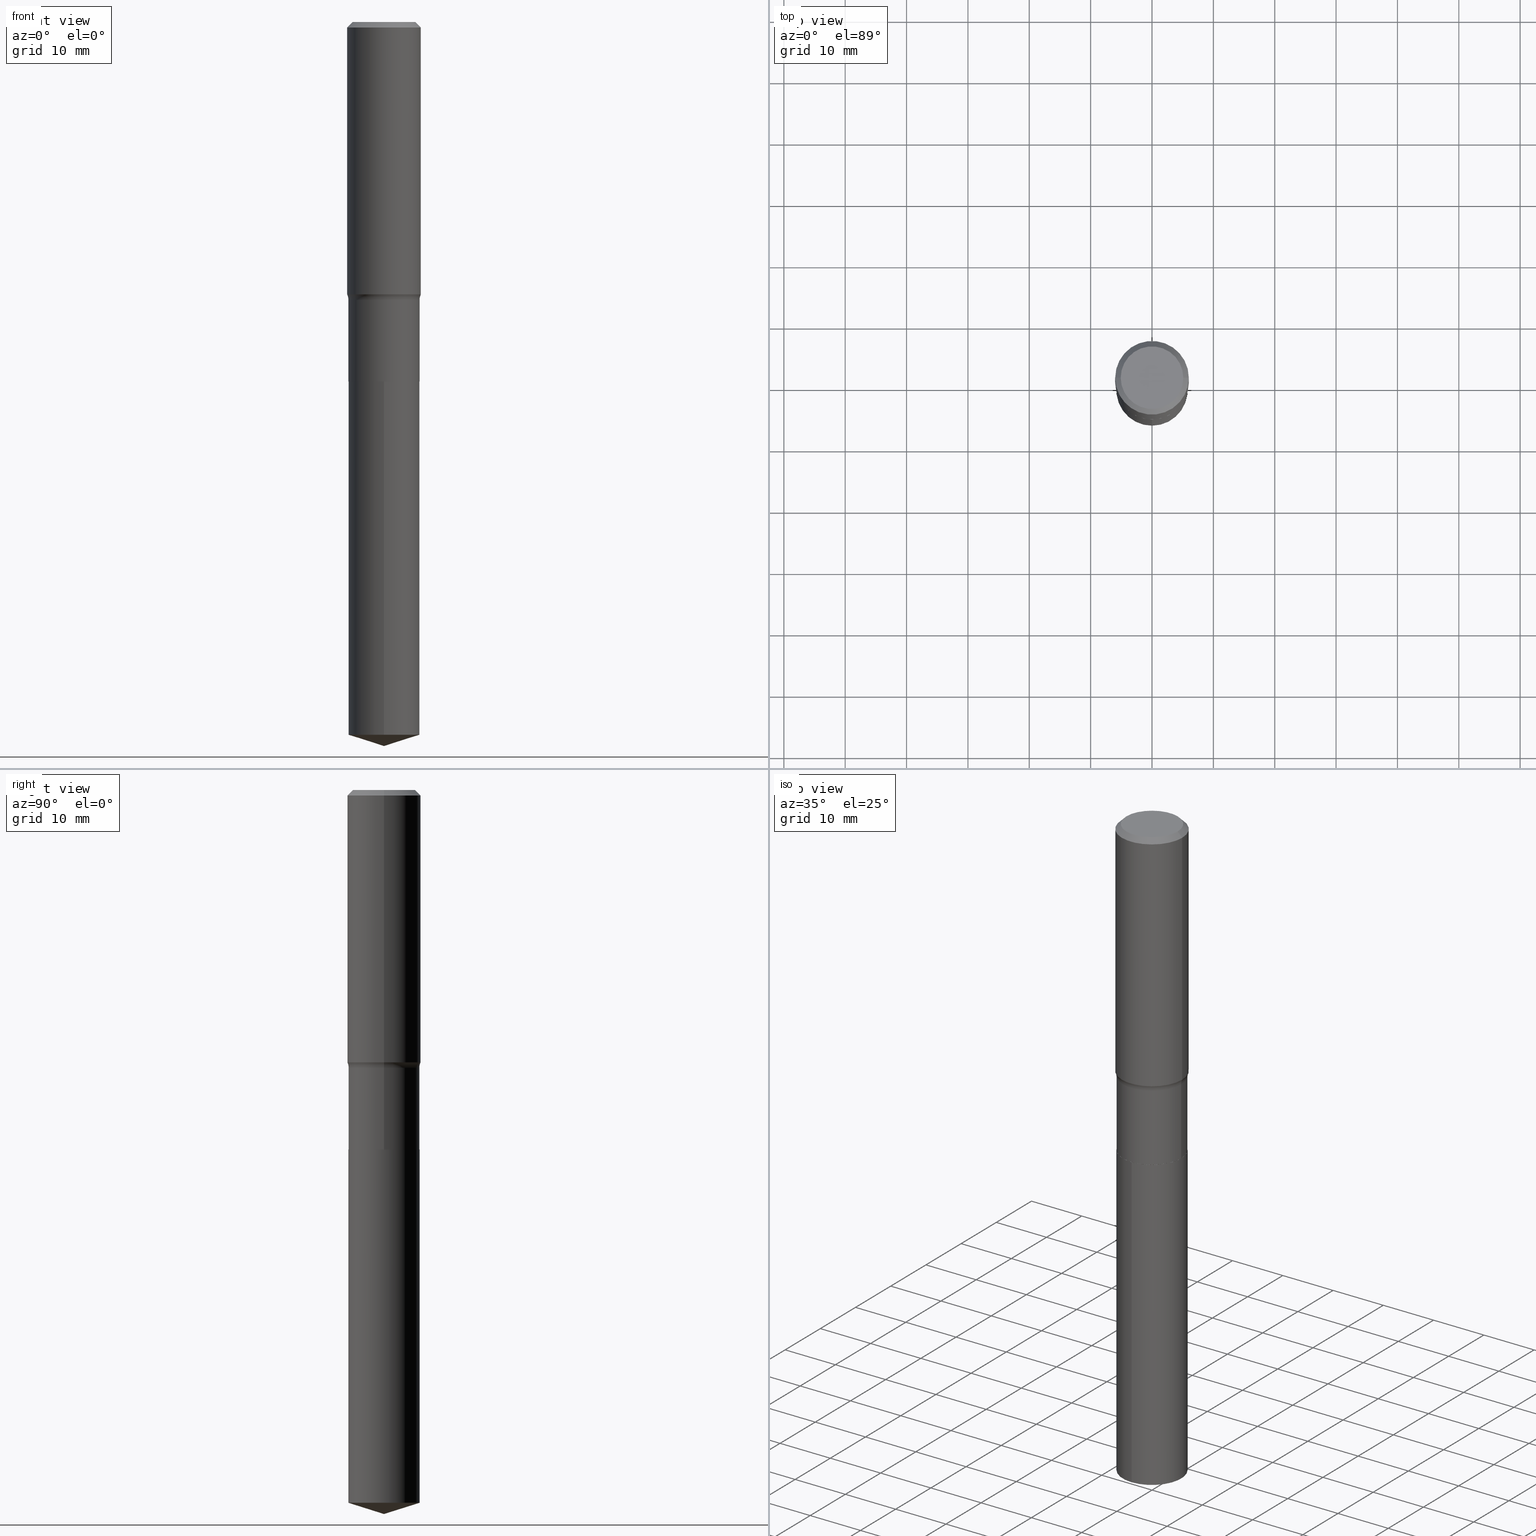
[diagram: canonical four-view strip — front | top / right | iso, engineering-drawing reading convention]
A machine part, canonical four-view strip (front | top / right | iso — engineering-drawing reading convention). The complete STEP part file that produces these views, byte-faithful:
ISO-10303-21;
HEADER;
FILE_DESCRIPTION (( 'STEP AP203' ),
    '1' );
FILE_NAME ('64191.STEP',
    '2024-04-19T15:32:59',
    ( '' ),
    ( '' ),
    'SwSTEP 2.0',
    'SolidWorks 2023',
    '' );
FILE_SCHEMA (( 'CONFIG_CONTROL_DESIGN' ));
ENDSEC;

DATA;
#1 = FACE_OUTER_BOUND ( 'NONE', #366, .T. ) ;
#2 = ORIENTED_EDGE ( 'NONE', *, *, #280, .F. ) ;
#3 = CARTESIAN_POINT ( 'NONE',  ( -0.2361999999999999933, 1.525672600634282748E-15, -0.03543000000000021826 ) ) ;
#4 = EDGE_CURVE ( 'NONE', #166, #167, #299, .T. ) ;
#5 = VECTOR ( 'NONE', #484, 39.37007874015748143 ) ;
#6 = PRODUCT_DEFINITION_FORMATION_WITH_SPECIFIED_SOURCE ( 'ANY', '', #438, .NOT_KNOWN. ) ;
#7 = DIRECTION ( 'NONE',  ( 2.445468806185136597E-29, -3.491481338843145583E-15, -1.000000000000000000 ) ) ;
#8 = DIRECTION ( 'NONE',  ( 1.000000000000000000, -6.982962677686269077E-15, 0.000000000000000000 ) ) ;
#9 = CC_DESIGN_PERSON_AND_ORGANIZATION_ASSIGNMENT ( #181, #377, ( #438 ) ) ;
#10 = PERSON_AND_ORGANIZATION ( #265, #436 ) ;
#11 = DIRECTION ( 'NONE',  ( -6.982962677686265922E-15, -1.000000000000000000, 3.500519750498709954E-15 ) ) ;
#12 = DIRECTION ( 'NONE',  ( -6.982962677686266711E-15, -1.000000000000000000, 3.491481338843145583E-15 ) ) ;
#13 = ADVANCED_FACE ( 'NONE', ( #79 ), #58, .T. ) ;
#14 = PERSON_AND_ORGANIZATION_ROLE ( 'classification_officer' ) ;
#15 = DIRECTION ( 'NONE',  ( -2.445468806185136877E-29, 3.491481338843145188E-15, 1.000000000000000000 ) ) ;
#16 = DIRECTION ( 'NONE',  ( 1.000000000000000000, -6.982962677686266711E-15, 4.876176775795936353E-29 ) ) ;
#17 = CARTESIAN_POINT ( 'NONE',  ( 8.664295980313993487E-31, -1.237031838352134079E-16, -0.03543000000000021826 ) ) ;
#18 = EDGE_CURVE ( 'NONE', #27, #250, #417, .T. ) ;
#19 = PERSON_AND_ORGANIZATION ( #265, #436 ) ;
#20 = CARTESIAN_POINT ( 'NONE',  ( 5.640718348346634668E-29, -8.053450856175598963E-15, -2.306599999999999540 ) ) ;
#21 = AXIS2_PLACEMENT_3D ( 'NONE', #234, #306, #313 ) ;
#22 = APPROVAL_PERSON_ORGANIZATION ( #19, #288, #316 ) ;
#23 =( NAMED_UNIT ( * ) PLANE_ANGLE_UNIT ( ) SI_UNIT ( $, .RADIAN. ) );
#24 = CARTESIAN_POINT ( 'NONE',  ( 0.2283499999999999697, -1.594559527449658749E-15, 1.113474966753001794E-29 ) ) ;
#25 = ORIENTED_EDGE ( 'NONE', *, *, #266, .T. ) ;
#26 = CIRCLE ( 'NONE', #467, 0.2283499999999999974 ) ;
#27 = VERTEX_POINT ( 'NONE', #81 ) ;
#28 = VERTEX_POINT ( 'NONE', #367 ) ;
#29 = DIRECTION ( 'NONE',  ( -2.445500184891920904E-29, 3.491436402749065523E-15, 1.000000000000000000 ) ) ;
#30 = ORIENTED_EDGE ( 'NONE', *, *, #475, .T. ) ;
#31 = ORIENTED_EDGE ( 'NONE', *, *, #394, .T. ) ;
#32 = LINE ( 'NONE', #140, #5 ) ;
#33 = EDGE_LOOP ( 'NONE', ( #214, #326, #376, #454 ) ) ;
#34 = AXIS2_PLACEMENT_3D ( 'NONE', #223, #80, #42 ) ;
#35 = ORIENTED_EDGE ( 'NONE', *, *, #132, .T. ) ;
#36 = CIRCLE ( 'NONE', #21, 0.2283499999999999419 ) ;
#37 = PLANE ( 'NONE',  #355 ) ;
#38 = DIRECTION ( 'NONE',  ( -2.445468806185136597E-29, 3.491481338843145583E-15, 1.000000000000000000 ) ) ;
#39 = CARTESIAN_POINT ( 'NONE',  ( 5.641941082749727469E-29, -8.055196596845019678E-15, -2.307099999999999707 ) ) ;
#40 = DIRECTION ( 'NONE',  ( 7.105427357601001859E-15, 1.000000000000000000, -3.491481338843145583E-15 ) ) ;
#41 = EDGE_CURVE ( 'NONE', #205, #28, #32, .T. ) ;
#42 = DIRECTION ( 'NONE',  ( 1.000000000000000000, -6.982962677686266711E-15, 4.876140833081945105E-29 ) ) ;
#43 = AXIS2_PLACEMENT_3D ( 'NONE', #359, #96, #142 ) ;
#44 = TOROIDAL_SURFACE ( 'NONE', #380, 0.3063499999999999002, 0.07799999999999995826 ) ;
#45 = APPLICATION_PROTOCOL_DEFINITION ( 'international standard', 'config_control_design', 1994, #192 ) ;
#46 = DIRECTION ( 'NONE',  ( -2.445468806185136597E-29, 3.491481338843145583E-15, 1.000000000000000000 ) ) ;
#47 = EDGE_CURVE ( 'NONE', #284, #290, #492, .T. ) ;
#48 = COORDINATED_UNIVERSAL_TIME_OFFSET ( 5, 0, .BEHIND. ) ;
#49 = DIRECTION ( 'NONE',  ( -1.000000000000000000, 6.982962677686265922E-15, -4.876176775795935793E-29 ) ) ;
#50 = PRODUCT_RELATED_PRODUCT_CATEGORY ( 'detail', '', ( #438 ) ) ;
#51 = CARTESIAN_POINT ( 'NONE',  ( 0.000000000000000000, 0.000000000000000000, 0.000000000000000000 ) ) ;
#52 = AXIS2_PLACEMENT_3D ( 'NONE', #221, #38, #180 ) ;
#53 = EDGE_CURVE ( 'NONE', #250, #247, #332, .T. ) ;
#54 = DIRECTION ( 'NONE',  ( -2.445500184891920904E-29, 3.491436402749065523E-15, 1.000000000000000000 ) ) ;
#55 = PERSON_AND_ORGANIZATION ( #265, #436 ) ;
#56 = DIRECTION ( 'NONE',  ( -2.445500184891920904E-29, 3.491436402749065523E-15, 1.000000000000000000 ) ) ;
#57 = CARTESIAN_POINT ( 'NONE',  ( 5.641941082749727469E-29, -8.055196596845019678E-15, -2.307099999999999707 ) ) ;
#58 = CONICAL_SURFACE ( 'NONE', #207, 0.2361999999999999933, 0.7853981633974452814 ) ;
#59 = ADVANCED_FACE ( 'NONE', ( #170 ), #64, .T. ) ;
#60 = PRODUCT_DEFINITION_SHAPE ( 'NONE', 'NONE',  #462 ) ;
#61 = EDGE_LOOP ( 'NONE', ( #97, #31, #133, #77 ) ) ;
#62 = FACE_OUTER_BOUND ( 'NONE', #483, .T. ) ;
#63 = EDGE_LOOP ( 'NONE', ( #35, #447, #162, #108 ) ) ;
#64 = CONICAL_SURFACE ( 'NONE', #91, 0.2278499999999999970, 0.7853981633975507526 ) ;
#65 = CONICAL_SURFACE ( 'NONE', #95, 124.8659371009148629, 1.265363707695891238 ) ;
#66 = ORIENTED_EDGE ( 'NONE', *, *, #154, .T. ) ;
#67 = DIRECTION ( 'NONE',  ( 1.000000000000000000, -6.982962677686263555E-15, 0.000000000000000000 ) ) ;
#68 = EDGE_CURVE ( 'NONE', #167, #358, #378, .T. ) ;
#69 = DIRECTION ( 'NONE',  ( -2.445468806185136597E-29, 3.491481338843145583E-15, 1.000000000000000000 ) ) ;
#70 = DIRECTION ( 'NONE',  ( -6.982962677686265922E-15, -1.000000000000000000, 3.589027361941226102E-15 ) ) ;
#71 = VERTEX_POINT ( 'NONE', #369 ) ;
#72 = DIRECTION ( 'NONE',  ( 1.000000000000000000, -6.982962677686266711E-15, 0.000000000000000000 ) ) ;
#73 = DIRECTION ( 'NONE',  ( -2.445500184891920904E-29, 3.491436402749065523E-15, 1.000000000000000000 ) ) ;
#74 = AXIS2_PLACEMENT_3D ( 'NONE', #196, #298, #425 ) ;
#75 = EDGE_LOOP ( 'NONE', ( #412, #30, #66, #404 ) ) ;
#76 = EDGE_CURVE ( 'NONE', #211, #284, #178, .T. ) ;
#77 = ORIENTED_EDGE ( 'NONE', *, *, #53, .F. ) ;
#78 = CARTESIAN_POINT ( 'NONE',  ( 4.274184373566582098E-29, -6.102402509219707960E-15, -1.747797544076708398 ) ) ;
#79 = FACE_OUTER_BOUND ( 'NONE', #141, .T. ) ;
#80 = DIRECTION ( 'NONE',  ( -2.445468806185136597E-29, 3.491481338843145583E-15, 1.000000000000000000 ) ) ;
#81 = CARTESIAN_POINT ( 'NONE',  ( -0.2362000000000002431, -4.424100567354349199E-15, -1.747797544076708398 ) ) ;
#82 = EDGE_CURVE ( 'NONE', #358, #167, #126, .T. ) ;
#83 = CARTESIAN_POINT ( 'NONE',  ( -5.008488096090115757E-47, 7.150793614331959538E-33, 2.048068690724057264E-18 ) ) ;
#84 = FACE_OUTER_BOUND ( 'NONE', #204, .T. ) ;
#85 = CIRCLE ( 'NONE', #354, 0.2283499999999999974 ) ;
#86 = LOCAL_TIME ( 11, 32, 59.00000000000000000, #198 ) ;
#87 = DIRECTION ( 'NONE',  ( 1.000000000000000000, 0.000000000000000000, 0.000000000000000000 ) ) ;
#88 = FACE_OUTER_BOUND ( 'NONE', #33, .T. ) ;
#89 = DIRECTION ( 'NONE',  ( -2.445500184891920904E-29, 3.491436402749065523E-15, 1.000000000000000000 ) ) ;
#90 = PERSON_AND_ORGANIZATION_ROLE ( 'design_supplier' ) ;
#91 = AXIS2_PLACEMENT_3D ( 'NONE', #486, #103, #257 ) ;
#92 = EDGE_CURVE ( 'NONE', #27, #358, #444, .T. ) ;
#93 = APPROVAL_STATUS ( 'not_yet_approved' ) ;
#94 = CARTESIAN_POINT ( 'NONE',  ( 0.000000000000000000, 0.000000000000000000, 0.000000000000000000 ) ) ;
#95 = AXIS2_PLACEMENT_3D ( 'NONE', #269, #373, #11 ) ;
#96 = DIRECTION ( 'NONE',  ( -2.445468806185136597E-29, 3.491481338843145583E-15, 1.000000000000000000 ) ) ;
#97 = ORIENTED_EDGE ( 'NONE', *, *, #194, .F. ) ;
#98 = LINE ( 'NONE', #291, #435 ) ;
#99 = EDGE_LOOP ( 'NONE', ( #115, #215, #102 ) ) ;
#100 = CARTESIAN_POINT ( 'NONE',  ( 4.357580865741294420E-29, -6.221470597684601332E-15, -1.781899999999999817 ) ) ;
#101 = ADVANCED_FACE ( 'NONE', ( #62 ), #224, .F. ) ;
#102 = ORIENTED_EDGE ( 'NONE', *, *, #132, .F. ) ;
#103 = DIRECTION ( 'NONE',  ( -2.445468806185136597E-29, 3.491481338843145583E-15, 1.000000000000000000 ) ) ;
#104 = EDGE_CURVE ( 'NONE', #27, #443, #244, .T. ) ;
#105 = DIRECTION ( 'NONE',  ( -2.445468806185136877E-29, 3.491481338843145188E-15, 1.000000000000000000 ) ) ;
#106 = ORIENTED_EDGE ( 'NONE', *, *, #268, .T. ) ;
#107 = EDGE_CURVE ( 'NONE', #247, #250, #36, .T. ) ;
#108 = ORIENTED_EDGE ( 'NONE', *, *, #47, .F. ) ;
#109 = DIRECTION ( 'NONE',  ( -6.659769872151631300E-15, -0.9537169507482265995, 0.3007057995042742848 ) ) ;
#110 = DIRECTION ( 'NONE',  ( 0.000000000000000000, 0.000000000000000000, 1.000000000000000000 ) ) ;
#111 = DIRECTION ( 'NONE',  ( -6.982962677686265922E-15, -1.000000000000000000, 3.500519750498709954E-15 ) ) ;
#112 = VECTOR ( 'NONE', #117, 39.37007874015748854 ) ;
#113 = APPROVAL_ROLE ( '' ) ;
#114 = FACE_OUTER_BOUND ( 'NONE', #172, .T. ) ;
#115 = ORIENTED_EDGE ( 'NONE', *, *, #76, .F. ) ;
#116 = DIRECTION ( 'NONE',  ( 0.7071067811865453523, -7.319954787623248157E-15, -0.7071067811865496822 ) ) ;
#117 = DIRECTION ( 'NONE',  ( 6.776566513254256560E-15, 0.9537169507482287090, 0.3007057995042676235 ) ) ;
#118 = DIRECTION ( 'NONE',  ( 1.000000000000000000, -6.982962677686264344E-15, 4.883557194083111780E-29 ) ) ;
#119 = AXIS2_PLACEMENT_3D ( 'NONE', #428, #466, #121 ) ;
#120 = CALENDAR_DATE ( 2024, 19, 4 ) ;
#121 = DIRECTION ( 'NONE',  ( 1.000000000000000000, -6.982962677686266711E-15, 4.876176775795935793E-29 ) ) ;
#122 = DIRECTION ( 'NONE',  ( -2.445468806185136597E-29, 3.491481338843145583E-15, 1.000000000000000000 ) ) ;
#123 = APPROVAL_STATUS ( 'not_yet_approved' ) ;
#124 = CYLINDRICAL_SURFACE ( 'NONE', #264, 0.2283499999999999697 ) ;
#125 = CYLINDRICAL_SURFACE ( 'NONE', #239, 0.2362000000000001321 ) ;
#126 = CIRCLE ( 'NONE', #52, 0.2361999999999999933 ) ;
#127 = APPROVAL_DATE_TIME ( #391, #288 ) ;
#128 = AXIS2_PLACEMENT_3D ( 'NONE', #226, #12, #149 ) ;
#129 = CC_DESIGN_DATE_AND_TIME_ASSIGNMENT ( #469, #235, ( #370 ) ) ;
#130 = DIRECTION ( 'NONE',  ( -2.445468806185136597E-29, 3.491481338843145583E-15, 1.000000000000000000 ) ) ;
#131 = CARTESIAN_POINT ( 'NONE',  ( 1.622524337108299986E-15, 0.2283499999999839269, -4.573701521559485172 ) ) ;
#132 = EDGE_CURVE ( 'NONE', #284, #173, #186, .T. ) ;
#133 = ORIENTED_EDGE ( 'NONE', *, *, #201, .T. ) ;
#134 = ORIENTED_EDGE ( 'NONE', *, *, #104, .F. ) ;
#135 = CARTESIAN_POINT ( 'NONE',  ( -1.594559527449602149E-15, -0.2283500000000080743, -2.307099999999998818 ) ) ;
#136 = VERTEX_POINT ( 'NONE', #468 ) ;
#137 = CIRCLE ( 'NONE', #488, 0.2362000000000002431 ) ;
#138 = AXIS2_PLACEMENT_3D ( 'NONE', #431, #89, #371 ) ;
#139 = ORIENTED_EDGE ( 'NONE', *, *, #18, .T. ) ;
#140 = CARTESIAN_POINT ( 'NONE',  ( -0.2278499999999999970, -6.436224973415631426E-15, -2.307099999999999707 ) ) ;
#141 = EDGE_LOOP ( 'NONE', ( #212, #217, #395, #328 ) ) ;
#142 = DIRECTION ( 'NONE',  ( 1.000000000000000000, -6.982962677686270655E-15, 0.000000000000000000 ) ) ;
#143 = FACE_OUTER_BOUND ( 'NONE', #368, .T. ) ;
#144 = DIRECTION ( 'NONE',  ( -0.7071067811865453523, 2.468850131082234184E-15, -0.7071067811865496822 ) ) ;
#145 = VECTOR ( 'NONE', #105, 39.37007874015748143 ) ;
#146 = DIRECTION ( 'NONE',  ( 2.445500184891920624E-29, -3.491436402749065523E-15, -1.000000000000000000 ) ) ;
#147 = AXIS2_PLACEMENT_3D ( 'NONE', #388, #54, #276 ) ;
#148 = DIRECTION ( 'NONE',  ( -2.445500184891920904E-29, 3.491436402749065523E-15, 1.000000000000000000 ) ) ;
#149 = DIRECTION ( 'NONE',  ( 1.000000000000000000, -6.982962677686276966E-15, 0.000000000000000000 ) ) ;
#150 = DIRECTION ( 'NONE',  ( -2.445500184891920904E-29, 3.491436402749065523E-15, 1.000000000000000000 ) ) ;
#151 = CIRCLE ( 'NONE', #311, 0.2007700000000000040 ) ;
#152 = LOCAL_TIME ( 11, 32, 59.00000000000000000, #153 ) ;
#153 = COORDINATED_UNIVERSAL_TIME_OFFSET ( 5, 0, .BEHIND. ) ;
#154 = EDGE_CURVE ( 'NONE', #136, #71, #464, .T. ) ;
#155 = EDGE_LOOP ( 'NONE', ( #331, #338, #285, #222 ) ) ;
#156 = FACE_OUTER_BOUND ( 'NONE', #155, .T. ) ;
#157 = CALENDAR_DATE ( 2024, 19, 4 ) ;
#158 = LINE ( 'NONE', #315, #197 ) ;
#159 = ADVANCED_FACE ( 'NONE', ( #84 ), #384, .T. ) ;
#160 = VECTOR ( 'NONE', #109, 39.37007874015748143 ) ;
#161 = EDGE_CURVE ( 'NONE', #71, #28, #253, .T. ) ;
#162 = ORIENTED_EDGE ( 'NONE', *, *, #446, .F. ) ;
#163 = AXIS2_PLACEMENT_3D ( 'NONE', #270, #122, #386 ) ;
#164 = EDGE_CURVE ( 'NONE', #173, #413, #98, .T. ) ;
#165 = CYLINDRICAL_SURFACE ( 'NONE', #448, 0.2283499999999999974 ) ;
#166 = VERTEX_POINT ( 'NONE', #210 ) ;
#167 = VERTEX_POINT ( 'NONE', #363 ) ;
#168 = ADVANCED_FACE ( 'NONE', ( #490 ), #165, .T. ) ;
#169 = ORIENTED_EDGE ( 'NONE', *, *, #280, .T. ) ;
#170 = FACE_OUTER_BOUND ( 'NONE', #445, .T. ) ;
#171 = DESIGN_CONTEXT ( 'detailed design', #192, 'design' ) ;
#172 = EDGE_LOOP ( 'NONE', ( #134, #139, #323, #482 ) ) ;
#173 = VERTEX_POINT ( 'NONE', #131 ) ;
#174 = ORIENTED_EDGE ( 'NONE', *, *, #161, .F. ) ;
#175 = AXIS2_PLACEMENT_3D ( 'NONE', #346, #146, #422 ) ;
#176 = AXIS2_PLACEMENT_3D ( 'NONE', #17, #242, #195 ) ;
#177 = ORIENTED_EDGE ( 'NONE', *, *, #446, .T. ) ;
#178 = LINE ( 'NONE', #213, #160 ) ;
#179 = CYLINDRICAL_SURFACE ( 'NONE', #138, 0.2283499999999999974 ) ;
#180 = DIRECTION ( 'NONE',  ( 1.000000000000000000, -6.982962677686266711E-15, 0.000000000000000000 ) ) ;
#181 = PERSON_AND_ORGANIZATION ( #265, #436 ) ;
#182 = CARTESIAN_POINT ( 'NONE',  ( -1.594559527449546337E-15, -0.2283500000000158736, -4.573701521559483396 ) ) ;
#183 = PERSON_AND_ORGANIZATION ( #265, #436 ) ;
#184 = DIRECTION ( 'NONE',  ( -2.445468806185136597E-29, 3.491481338843145583E-15, 1.000000000000000000 ) ) ;
#185 = EDGE_CURVE ( 'NONE', #166, #236, #151, .T. ) ;
#186 = CIRCLE ( 'NONE', #74, 0.2283499999999999974 ) ;
#187 = DIRECTION ( 'NONE',  ( -2.445468806185136597E-29, 3.491481338843145583E-15, 1.000000000000000000 ) ) ;
#188 = CONICAL_SURFACE ( 'NONE', #480, 124.8659371009148629, 1.265363707695891238 ) ;
#189 = MANIFOLD_SOLID_BREP ( 'Body-Move/Copy2[2]', #427 ) ;
#190 = COORDINATED_UNIVERSAL_TIME_OFFSET ( 5, 0, .BEHIND. ) ;
#191 = FACE_OUTER_BOUND ( 'NONE', #416, .T. ) ;
#192 = APPLICATION_CONTEXT ( 'configuration controlled 3d designs of mechanical parts and assemblies' ) ;
#193 = DIRECTION ( 'NONE',  ( 1.000000000000000000, -6.982962677686265922E-15, 0.000000000000000000 ) ) ;
#194 = EDGE_CURVE ( 'NONE', #28, #250, #408, .T. ) ;
#195 = DIRECTION ( 'NONE',  ( -1.000000000000000000, 6.982962677686266711E-15, 0.000000000000000000 ) ) ;
#196 = CARTESIAN_POINT ( 'NONE',  ( 1.118491552279975631E-28, -1.596889165974422401E-14, -4.573701521559484284 ) ) ;
#197 = VECTOR ( 'NONE', #15, 39.37007874015748143 ) ;
#198 = COORDINATED_UNIVERSAL_TIME_OFFSET ( 5, 0, .BEHIND. ) ;
#199 = MANIFOLD_SOLID_BREP ( 'Body-Move/Copy2[1]', #283 ) ;
#200 =( CONVERSION_BASED_UNIT ( 'INCH', #357 ) LENGTH_UNIT ( ) NAMED_UNIT ( #202 ) );
#201 = EDGE_CURVE ( 'NONE', #71, #247, #258, .T. ) ;
#202 = DIMENSIONAL_EXPONENTS ( 1.000000000000000000, 0.000000000000000000, 0.000000000000000000, 0.000000000000000000, 0.000000000000000000, 0.000000000000000000, 0.000000000000000000 ) ;
#203 = APPROVAL ( #300, 'UNSPECIFIED' ) ;
#204 = EDGE_LOOP ( 'NONE', ( #25, #220, #206, #365 ) ) ;
#205 = VERTEX_POINT ( 'NONE', #251 ) ;
#206 = ORIENTED_EDGE ( 'NONE', *, *, #68, .F. ) ;
#207 = AXIS2_PLACEMENT_3D ( 'NONE', #452, #7, #225 ) ;
#208 = APPROVAL_PERSON_ORGANIZATION ( #183, #203, #113 ) ;
#209 = ORIENTED_EDGE ( 'NONE', *, *, #107, .F. ) ;
#210 = CARTESIAN_POINT ( 'NONE',  ( 0.2007700000000000040, -1.560767496960719672E-15, 4.096137381458473721E-18 ) ) ;
#211 = VERTEX_POINT ( 'NONE', #411 ) ;
#212 = ORIENTED_EDGE ( 'NONE', *, *, #185, .F. ) ;
#213 = CARTESIAN_POINT ( 'NONE',  ( 1.136091542132355139E-28, -1.622037344037663839E-14, -4.645699999999999719 ) ) ;
#214 = ORIENTED_EDGE ( 'NONE', *, *, #164, .F. ) ;
#215 = ORIENTED_EDGE ( 'NONE', *, *, #297, .T. ) ;
#216 = DIRECTION ( 'NONE',  ( -2.445468806185136597E-29, 3.491481338843145583E-15, 1.000000000000000000 ) ) ;
#217 = ORIENTED_EDGE ( 'NONE', *, *, #4, .T. ) ;
#218 = VECTOR ( 'NONE', #456, 39.37007874015748143 ) ;
#219 = CONICAL_SURFACE ( 'NONE', #176, 0.2361999999999999933, 0.7853981633974452814 ) ;
#220 = ORIENTED_EDGE ( 'NONE', *, *, #92, .T. ) ;
#221 = CARTESIAN_POINT ( 'NONE',  ( 8.664295980313993487E-31, -1.237031838352134079E-16, -0.03543000000000021826 ) ) ;
#222 = ORIENTED_EDGE ( 'NONE', *, *, #82, .F. ) ;
#223 = CARTESIAN_POINT ( 'NONE',  ( -1.001697619218023151E-46, 1.430158722866391908E-32, 4.096137381448114529E-18 ) ) ;
#224 = PLANE ( 'NONE',  #175 ) ;
#225 = DIRECTION ( 'NONE',  ( -1.000000000000000000, 6.982962677686266711E-15, 0.000000000000000000 ) ) ;
#226 = CARTESIAN_POINT ( 'NONE',  ( 0.3063499999999999002, -8.360701213993788325E-15, -1.781899999999999817 ) ) ;
#227 = CARTESIAN_POINT ( 'NONE',  ( 4.274184373566582098E-29, -6.102402509219707960E-15, -1.747797544076708398 ) ) ;
#228 = ORIENTED_EDGE ( 'NONE', *, *, #82, .T. ) ;
#229 = FACE_OUTER_BOUND ( 'NONE', #99, .T. ) ;
#230 = VECTOR ( 'NONE', #144, 39.37007874015748143 ) ;
#231 = AXIS2_PLACEMENT_3D ( 'NONE', #57, #130, #281 ) ;
#232 = CALENDAR_DATE ( 2024, 19, 4 ) ;
#233 = LINE ( 'NONE', #3, #230 ) ;
#234 = CARTESIAN_POINT ( 'NONE',  ( 4.357580865741294420E-29, -6.221470597684601332E-15, -1.781899999999999817 ) ) ;
#235 = DATE_TIME_ROLE ( 'classification_date' ) ;
#236 = VERTEX_POINT ( 'NONE', #442 ) ;
#237 = CARTESIAN_POINT ( 'NONE',  ( 0.2278499999999999970, -9.646264642955835617E-15, -2.307099999999999707 ) ) ;
#238 = APPROVAL_DATE_TIME ( #432, #453 ) ;
#239 = AXIS2_PLACEMENT_3D ( 'NONE', #51, #240, #16 ) ;
#240 = DIRECTION ( 'NONE',  ( -2.445468806185136597E-29, 3.491481338843145583E-15, 1.000000000000000000 ) ) ;
#241 = PERSON_AND_ORGANIZATION ( #265, #436 ) ;
#242 = DIRECTION ( 'NONE',  ( 2.445468806185136597E-29, -3.491481338843145583E-15, -1.000000000000000000 ) ) ;
#243 = CIRCLE ( 'NONE', #34, 0.2007700000000000040 ) ;
#244 = CIRCLE ( 'NONE', #389, 0.2362000000000002431 ) ;
#245 = CIRCLE ( 'NONE', #128, 0.07799999999999993050 ) ;
#246 = EDGE_CURVE ( 'NONE', #236, #358, #233, .T. ) ;
#247 = VERTEX_POINT ( 'NONE', #296 ) ;
#248 = CARTESIAN_POINT ( 'NONE',  ( -0.2362000000000001321, 1.678301941865357577E-15, -1.161852468318209457E-29 ) ) ;
#249 = CC_DESIGN_PERSON_AND_ORGANIZATION_ASSIGNMENT ( #437, #385, ( #6 ) ) ;
#250 = VERTEX_POINT ( 'NONE', #455 ) ;
#251 = CARTESIAN_POINT ( 'NONE',  ( -0.2278499999999999970, -6.433575746241520225E-15, -2.307099999999999707 ) ) ;
#252 = ORIENTED_EDGE ( 'NONE', *, *, #161, .T. ) ;
#253 = CIRCLE ( 'NONE', #43, 0.2283499999999999974 ) ;
#254 = EDGE_CURVE ( 'NONE', #173, #284, #85, .T. ) ;
#255 = CIRCLE ( 'NONE', #489, 0.2278499999999999970 ) ;
#256 = ORIENTED_EDGE ( 'NONE', *, *, #254, .F. ) ;
#257 = DIRECTION ( 'NONE',  ( 1.000000000000000000, -6.982962677686269077E-15, 0.000000000000000000 ) ) ;
#258 = LINE ( 'NONE', #24, #319 ) ;
#259 = ORIENTED_EDGE ( 'NONE', *, *, #76, .T. ) ;
#260 = DIRECTION ( 'NONE',  ( -2.445500184891920904E-29, 3.491436402749065523E-15, 1.000000000000000000 ) ) ;
#261 = ORIENTED_EDGE ( 'NONE', *, *, #423, .T. ) ;
#262 = MECHANICAL_CONTEXT ( 'NONE', #293, 'mechanical' ) ;
#263 = DIRECTION ( 'NONE',  ( -2.445468806185136597E-29, 3.491481338843145583E-15, 1.000000000000000000 ) ) ;
#264 = AXIS2_PLACEMENT_3D ( 'NONE', #94, #275, #477 ) ;
#265 = PERSON ( 'UNSPECIFIED', 'UNSPECIFIED', 'UNSPECIFIED', ('UNSPECIFIED'), ('UNSPECIFIED'), ('UNSPECIFIED') ) ;
#266 = EDGE_CURVE ( 'NONE', #443, #27, #137, .T. ) ;
#267 = CARTESIAN_POINT ( 'NONE',  ( 5.641941082749727469E-29, -8.055196596845019678E-15, -2.307099999999999707 ) ) ;
#268 = EDGE_CURVE ( 'NONE', #236, #166, #243, .T. ) ;
#269 = CARTESIAN_POINT ( 'NONE',  ( -8.491854702312662394E-28, 1.212378563241689000E-13, 34.72437874015748349 ) ) ;
#270 = CARTESIAN_POINT ( 'NONE',  ( 0.000000000000000000, 0.000000000000000000, 0.000000000000000000 ) ) ;
#271 = PERSON_AND_ORGANIZATION ( #265, #436 ) ;
#272 = CYLINDRICAL_SURFACE ( 'NONE', #119, 0.2283499999999999697 ) ;
#273 = ADVANCED_FACE ( 'NONE', ( #143 ), #65, .T. ) ;
#274 = CALENDAR_DATE ( 2024, 19, 4 ) ;
#275 = DIRECTION ( 'NONE',  ( -2.445468806185136597E-29, 3.491481338843145583E-15, 1.000000000000000000 ) ) ;
#276 = DIRECTION ( 'NONE',  ( -6.982962677686265922E-15, -1.000000000000000000, 3.589027361941226102E-15 ) ) ;
#277 = AXIS2_PLACEMENT_3D ( 'NONE', #100, #216, #67 ) ;
#278 = ADVANCED_FACE ( 'NONE', ( #229 ), #188, .T. ) ;
#279 = DIRECTION ( 'NONE',  ( -2.445468806185136597E-29, 3.491481338843145583E-15, 1.000000000000000000 ) ) ;
#280 = EDGE_CURVE ( 'NONE', #136, #205, #255, .T. ) ;
#281 = DIRECTION ( 'NONE',  ( 1.000000000000000000, -6.982962677686269077E-15, 0.000000000000000000 ) ) ;
#282 = DIRECTION ( 'NONE',  ( 1.000000000000000000, -6.982962677686264344E-15, 4.883557194083111780E-29 ) ) ;
#283 = CLOSED_SHELL ( 'NONE', ( #168, #278, #273, #353, #101 ) ) ;
#284 = VERTEX_POINT ( 'NONE', #182 ) ;
#285 = ORIENTED_EDGE ( 'NONE', *, *, #434, .T. ) ;
#286 = ADVANCED_FACE ( 'NONE', ( #191 ), #37, .F. ) ;
#287 = ORIENTED_EDGE ( 'NONE', *, *, #246, .T. ) ;
#288 = APPROVAL ( #93, 'UNSPECIFIED' ) ;
#289 = CC_DESIGN_APPROVAL ( #453, ( #370 ) ) ;
#290 = VERTEX_POINT ( 'NONE', #342 ) ;
#291 = CARTESIAN_POINT ( 'NONE',  ( 1.622524337108245160E-15, 0.2283499999999919483, -2.307100000000000151 ) ) ;
#292 = ORIENTED_EDGE ( 'NONE', *, *, #194, .T. ) ;
#293 = APPLICATION_CONTEXT ( 'configuration controlled 3d designs of mechanical parts and assemblies' ) ;
#294 = ORIENTED_EDGE ( 'NONE', *, *, #297, .F. ) ;
#295 = CARTESIAN_POINT ( 'NONE',  ( 0.000000000000000000, 0.000000000000000000, 0.000000000000000000 ) ) ;
#296 = CARTESIAN_POINT ( 'NONE',  ( 0.2283499999999999419, -7.816030125134258701E-15, -1.781899999999999817 ) ) ;
#297 = EDGE_CURVE ( 'NONE', #211, #173, #304, .T. ) ;
#298 = DIRECTION ( 'NONE',  ( -2.445500184891920904E-29, 3.491436402749065523E-15, 1.000000000000000000 ) ) ;
#299 = LINE ( 'NONE', #333, #479 ) ;
#300 = APPROVAL_STATUS ( 'not_yet_approved' ) ;
#301 = CARTESIAN_POINT ( 'NONE',  ( -8.491854702312662394E-28, 1.212378563241689000E-13, 34.72437874015748349 ) ) ;
#302 =( GEOMETRIC_REPRESENTATION_CONTEXT ( 3 ) GLOBAL_UNCERTAINTY_ASSIGNED_CONTEXT ( ( #364 ) ) GLOBAL_UNIT_ASSIGNED_CONTEXT ( ( #200, #23, #352 ) ) REPRESENTATION_CONTEXT ( 'NONE', 'WORKASPACE' ) );
#303 = ADVANCED_FACE ( 'NONE', ( #114 ), #399, .F. ) ;
#304 = LINE ( 'NONE', #459, #112 ) ;
#305 = EDGE_LOOP ( 'NONE', ( #2, #407 ) ) ;
#306 = DIRECTION ( 'NONE',  ( -2.445468806185136597E-29, 3.491481338843145583E-15, 1.000000000000000000 ) ) ;
#307 = DIRECTION ( 'NONE',  ( 1.000000000000000000, -6.982962677686265922E-15, 4.876176775795935793E-29 ) ) ;
#308 = ADVANCED_FACE ( 'NONE', ( #345 ), #343, .T. ) ;
#309 = COORDINATED_UNIVERSAL_TIME_OFFSET ( 5, 0, .BEHIND. ) ;
#310 = DIRECTION ( 'NONE',  ( -2.445468806185136597E-29, 3.491481338843145583E-15, 1.000000000000000000 ) ) ;
#311 = AXIS2_PLACEMENT_3D ( 'NONE', #485, #403, #322 ) ;
#312 = CC_DESIGN_APPROVAL ( #288, ( #6 ) ) ;
#313 = DIRECTION ( 'NONE',  ( 1.000000000000000000, -6.982962677686263555E-15, 0.000000000000000000 ) ) ;
#314 = LOCAL_TIME ( 11, 32, 59.00000000000000000, #48 ) ;
#315 = CARTESIAN_POINT ( 'NONE',  ( 0.2362000000000001321, -1.649375784469497117E-15, 1.151752954443000789E-29 ) ) ;
#316 = APPROVAL_ROLE ( '' ) ;
#317 = CARTESIAN_POINT ( 'NONE',  ( 1.622524337108300972E-15, 0.2283499999999919483, -2.307100000000000151 ) ) ;
#318 = CC_DESIGN_DATE_AND_TIME_ASSIGNMENT ( #356, #439, ( #462 ) ) ;
#319 = VECTOR ( 'NONE', #478, 39.37007874015748143 ) ;
#320 = AXIS2_PLACEMENT_3D ( 'NONE', #295, #110, #87 ) ;
#321 = FACE_OUTER_BOUND ( 'NONE', #426, .T. ) ;
#322 = DIRECTION ( 'NONE',  ( 1.000000000000000000, -6.982962677686266711E-15, 4.876140833081945105E-29 ) ) ;
#323 = ORIENTED_EDGE ( 'NONE', *, *, #53, .T. ) ;
#324 = VECTOR ( 'NONE', #29, 39.37007874015748143 ) ;
#325 = APPROVAL_PERSON_ORGANIZATION ( #271, #453, #430 ) ;
#326 = ORIENTED_EDGE ( 'NONE', *, *, #254, .T. ) ;
#327 = ORIENTED_EDGE ( 'NONE', *, *, #201, .F. ) ;
#328 = ORIENTED_EDGE ( 'NONE', *, *, #246, .F. ) ;
#329 = EDGE_CURVE ( 'NONE', #443, #247, #245, .T. ) ;
#330 = ORIENTED_EDGE ( 'NONE', *, *, #4, .F. ) ;
#331 = ORIENTED_EDGE ( 'NONE', *, *, #92, .F. ) ;
#332 = CIRCLE ( 'NONE', #277, 0.2283499999999999419 ) ;
#333 = CARTESIAN_POINT ( 'NONE',  ( 0.2361999999999999933, -1.744152810908849053E-15, -0.03543000000000021826 ) ) ;
#334 = CC_DESIGN_APPROVAL ( #203, ( #462 ) ) ;
#335 = ORIENTED_EDGE ( 'NONE', *, *, #185, .T. ) ;
#336 = ADVANCED_FACE ( 'NONE', ( #375 ), #461, .F. ) ;
#337 = CARTESIAN_POINT ( 'NONE',  ( -0.2361999999999999933, -1.434750904662102404E-15, -0.03543000000000021826 ) ) ;
#338 = ORIENTED_EDGE ( 'NONE', *, *, #104, .T. ) ;
#339 = ADVANCED_FACE ( 'NONE', ( #463 ), #272, .T. ) ;
#340 = DIRECTION ( 'NONE',  ( 2.438088387897960049E-29, -3.491481338843145188E-15, -1.000000000000000000 ) ) ;
#341 = APPROVAL_DATE_TIME ( #420, #203 ) ;
#342 = CARTESIAN_POINT ( 'NONE',  ( -1.594559527449602149E-15, -0.2283500000000080743, -2.307099999999998818 ) ) ;
#343 = CONICAL_SURFACE ( 'NONE', #362, 0.2278499999999999970, 0.7853981633975507526 ) ;
#344 = DIRECTION ( 'NONE',  ( 1.000000000000000000, -6.982962677686265922E-15, 0.000000000000000000 ) ) ;
#345 = FACE_OUTER_BOUND ( 'NONE', #75, .T. ) ;
#346 = CARTESIAN_POINT ( 'NONE',  ( 5.641941082749727469E-29, -8.055196596845019678E-15, -2.307099999999999707 ) ) ;
#347 = CARTESIAN_POINT ( 'NONE',  ( 5.641941082749727469E-29, -8.055196596845019678E-15, -2.307099999999999707 ) ) ;
#348 = CALENDAR_DATE ( 2024, 19, 4 ) ;
#349 = FACE_OUTER_BOUND ( 'NONE', #61, .T. ) ;
#350 = CIRCLE ( 'NONE', #231, 0.2278499999999999970 ) ;
#351 = SHAPE_DEFINITION_REPRESENTATION ( #60, #473 ) ;
#352 =( NAMED_UNIT ( * ) SI_UNIT ( $, .STERADIAN. ) SOLID_ANGLE_UNIT ( ) );
#353 = ADVANCED_FACE ( 'NONE', ( #88 ), #179, .T. ) ;
#354 = AXIS2_PLACEMENT_3D ( 'NONE', #379, #150, #419 ) ;
#355 = AXIS2_PLACEMENT_3D ( 'NONE', #83, #340, #49 ) ;
#356 = DATE_AND_TIME ( #348, #314 ) ;
#357 = LENGTH_MEASURE_WITH_UNIT ( LENGTH_MEASURE( 0.02539999999999999897 ), #433 );
#358 = VERTEX_POINT ( 'NONE', #337 ) ;
#359 = CARTESIAN_POINT ( 'NONE',  ( 5.640718348346634668E-29, -8.053450856175598963E-15, -2.306599999999999540 ) ) ;
#360 = ORIENTED_EDGE ( 'NONE', *, *, #18, .F. ) ;
#361 = VECTOR ( 'NONE', #401, 39.37007874015748143 ) ;
#362 = AXIS2_PLACEMENT_3D ( 'NONE', #347, #46, #8 ) ;
#363 = CARTESIAN_POINT ( 'NONE',  ( 0.2361999999999999933, -1.773078968304709514E-15, -0.03543000000000021826 ) ) ;
#364 = UNCERTAINTY_MEASURE_WITH_UNIT (LENGTH_MEASURE( 1.000000000000000082E-05 ), #200, 'distance_accuracy_value', 'NONE');
#365 = ORIENTED_EDGE ( 'NONE', *, *, #434, .F. ) ;
#366 = EDGE_LOOP ( 'NONE', ( #360, #491, #409, #402 ) ) ;
#367 = CARTESIAN_POINT ( 'NONE',  ( -0.2283499999999999974, -5.514936389821909419E-15, -2.306599999999999540 ) ) ;
#368 = EDGE_LOOP ( 'NONE', ( #294, #259, #256 ) ) ;
#369 = CARTESIAN_POINT ( 'NONE',  ( 0.2283499999999999974, -9.648010383625257910E-15, -2.306599999999999540 ) ) ;
#370 = SECURITY_CLASSIFICATION ( '', '', #465 ) ;
#371 = DIRECTION ( 'NONE',  ( -6.982962677686265922E-15, -1.000000000000000000, 3.589027361941226102E-15 ) ) ;
#372 = CC_DESIGN_PERSON_AND_ORGANIZATION_ASSIGNMENT ( #55, #14, ( #370 ) ) ;
#373 = DIRECTION ( 'NONE',  ( -2.445500184891920904E-29, 3.491436402749065523E-15, 1.000000000000000000 ) ) ;
#374 = CARTESIAN_POINT ( 'NONE',  ( -0.3063499999999999002, -4.044722926683535122E-15, -1.781899999999999817 ) ) ;
#375 = FACE_OUTER_BOUND ( 'NONE', #305, .T. ) ;
#376 = ORIENTED_EDGE ( 'NONE', *, *, #47, .T. ) ;
#377 = PERSON_AND_ORGANIZATION_ROLE ( 'design_owner' ) ;
#378 = CIRCLE ( 'NONE', #398, 0.2361999999999999933 ) ;
#379 = CARTESIAN_POINT ( 'NONE',  ( 1.118491552279975631E-28, -1.596889165974422401E-14, -4.573701521559484284 ) ) ;
#380 = AXIS2_PLACEMENT_3D ( 'NONE', #393, #279, #282 ) ;
#381 = ADVANCED_FACE ( 'NONE', ( #1 ), #44, .F. ) ;
#382 = PERSON_AND_ORGANIZATION_ROLE ( 'creator' ) ;
#383 = DIRECTION ( 'NONE',  ( 1.000000000000000000, -6.982962677686269077E-15, 0.000000000000000000 ) ) ;
#384 = CYLINDRICAL_SURFACE ( 'NONE', #163, 0.2362000000000001321 ) ;
#385 = PERSON_AND_ORGANIZATION_ROLE ( 'creator' ) ;
#386 = DIRECTION ( 'NONE',  ( 1.000000000000000000, -6.982962677686266711E-15, 4.876176775795936353E-29 ) ) ;
#387 = ADVANCED_FACE ( 'NONE', ( #321 ), #219, .T. ) ;
#388 = CARTESIAN_POINT ( 'NONE',  ( 5.641941082749727469E-29, -8.055196596845019678E-15, -2.307099999999999707 ) ) ;
#389 = AXIS2_PLACEMENT_3D ( 'NONE', #227, #187, #344 ) ;
#390 = CIRCLE ( 'NONE', #458, 0.2283499999999999974 ) ;
#391 = DATE_AND_TIME ( #157, #429 ) ;
#392 = DIRECTION ( 'NONE',  ( -6.982962677686265922E-15, -1.000000000000000000, 3.589027361941226102E-15 ) ) ;
#393 = CARTESIAN_POINT ( 'NONE',  ( 4.357580865741294420E-29, -6.221470597684601332E-15, -1.781899999999999817 ) ) ;
#394 = EDGE_CURVE ( 'NONE', #28, #71, #390, .T. ) ;
#395 = ORIENTED_EDGE ( 'NONE', *, *, #68, .T. ) ;
#396 = DIRECTION ( 'NONE',  ( -2.445468806185136597E-29, 3.491481338843145583E-15, 1.000000000000000000 ) ) ;
#397 = ADVANCED_FACE ( 'NONE', ( #156 ), #125, .T. ) ;
#398 = AXIS2_PLACEMENT_3D ( 'NONE', #410, #69, #72 ) ;
#399 = TOROIDAL_SURFACE ( 'NONE', #449, 0.3063499999999999002, 0.07799999999999995826 ) ;
#400 = EDGE_LOOP ( 'NONE', ( #252, #292, #209, #327 ) ) ;
#401 = DIRECTION ( 'NONE',  ( -2.445468806185136877E-29, 3.491481338843145188E-15, 1.000000000000000000 ) ) ;
#402 = ORIENTED_EDGE ( 'NONE', *, *, #107, .T. ) ;
#403 = DIRECTION ( 'NONE',  ( -2.445468806185136597E-29, 3.491481338843145583E-15, 1.000000000000000000 ) ) ;
#404 = ORIENTED_EDGE ( 'NONE', *, *, #394, .F. ) ;
#405 = CIRCLE ( 'NONE', #147, 0.2283499999999999974 ) ;
#406 = CC_DESIGN_PERSON_AND_ORGANIZATION_ASSIGNMENT ( #10, #382, ( #462 ) ) ;
#407 = ORIENTED_EDGE ( 'NONE', *, *, #475, .F. ) ;
#408 = LINE ( 'NONE', #450, #145 ) ;
#409 = ORIENTED_EDGE ( 'NONE', *, *, #329, .T. ) ;
#410 = CARTESIAN_POINT ( 'NONE',  ( 8.664295980313993487E-31, -1.237031838352134079E-16, -0.03543000000000021826 ) ) ;
#411 = CARTESIAN_POINT ( 'NONE',  ( 1.136106020895239541E-28, -1.622016609625133077E-14, -4.645699999999999719 ) ) ;
#412 = ORIENTED_EDGE ( 'NONE', *, *, #41, .F. ) ;
#413 = VERTEX_POINT ( 'NONE', #317 ) ;
#414 = CARTESIAN_POINT ( 'NONE',  ( 5.641941082749727469E-29, -8.055196596845019678E-15, -2.307099999999999707 ) ) ;
#415 = CC_DESIGN_PERSON_AND_ORGANIZATION_ASSIGNMENT ( #241, #90, ( #6 ) ) ;
#416 = EDGE_LOOP ( 'NONE', ( #106, #335 ) ) ;
#417 = CIRCLE ( 'NONE', #457, 0.07799999999999993050 ) ;
#418 = LOCAL_TIME ( 11, 32, 59.00000000000000000, #190 ) ;
#419 = DIRECTION ( 'NONE',  ( -6.982962677686265922E-15, -1.000000000000000000, 2.392684907960817401E-15 ) ) ;
#420 = DATE_AND_TIME ( #232, #418 ) ;
#421 = CARTESIAN_POINT ( 'NONE',  ( 4.357580865741294420E-29, -6.221470597684601332E-15, -1.781899999999999817 ) ) ;
#422 = DIRECTION ( 'NONE',  ( 6.982962677686265922E-15, 1.000000000000000000, -3.491436402749065523E-15 ) ) ;
#423 = EDGE_CURVE ( 'NONE', #413, #290, #26, .T. ) ;
#424 = DIRECTION ( 'NONE',  ( -2.438088387897960049E-29, 3.491481338843145188E-15, 1.000000000000000000 ) ) ;
#425 = DIRECTION ( 'NONE',  ( -6.982962677686265922E-15, -1.000000000000000000, 2.392684907960817401E-15 ) ) ;
#426 = EDGE_LOOP ( 'NONE', ( #330, #451, #287, #228 ) ) ;
#427 = CLOSED_SHELL ( 'NONE', ( #59, #13, #159, #303, #339, #472, #381, #397, #387, #286, #336, #308 ) ) ;
#428 = CARTESIAN_POINT ( 'NONE',  ( 0.000000000000000000, 0.000000000000000000, 0.000000000000000000 ) ) ;
#429 = LOCAL_TIME ( 11, 32, 59.00000000000000000, #309 ) ;
#430 = APPROVAL_ROLE ( '' ) ;
#431 = CARTESIAN_POINT ( 'NONE',  ( 5.641941082749727469E-29, -8.055196596845019678E-15, -2.307099999999999707 ) ) ;
#432 = DATE_AND_TIME ( #274, #86 ) ;
#433 =( LENGTH_UNIT ( ) NAMED_UNIT ( * ) SI_UNIT ( $, .METRE. ) );
#434 = EDGE_CURVE ( 'NONE', #443, #167, #158, .T. ) ;
#435 = VECTOR ( 'NONE', #260, 39.37007874015748143 ) ;
#436 = ORGANIZATION ( 'UNSPECIFIED', 'UNSPECIFIED', '' ) ;
#437 = PERSON_AND_ORGANIZATION ( #265, #436 ) ;
#438 = PRODUCT ( '64191', '64191', '', ( #262 ) ) ;
#439 = DATE_TIME_ROLE ( 'creation_date' ) ;
#440 = APPLICATION_PROTOCOL_DEFINITION ( 'international standard', 'config_control_design', 1994, #293 ) ;
#441 = CC_DESIGN_SECURITY_CLASSIFICATION ( #370, ( #6 ) ) ;
#442 = CARTESIAN_POINT ( 'NONE',  ( -0.2007700000000000040, 1.463821008716677338E-15, 4.096137381438094301E-18 ) ) ;
#443 = VERTEX_POINT ( 'NONE', #470 ) ;
#444 = LINE ( 'NONE', #248, #361 ) ;
#445 = EDGE_LOOP ( 'NONE', ( #169, #481, #174, #487 ) ) ;
#446 = EDGE_CURVE ( 'NONE', #290, #413, #405, .T. ) ;
#447 = ORIENTED_EDGE ( 'NONE', *, *, #164, .T. ) ;
#448 = AXIS2_PLACEMENT_3D ( 'NONE', #414, #73, #70 ) ;
#449 = AXIS2_PLACEMENT_3D ( 'NONE', #421, #310, #118 ) ;
#450 = CARTESIAN_POINT ( 'NONE',  ( -0.2283499999999999697, 1.622524337108188559E-15, -1.123238827859707655E-29 ) ) ;
#451 = ORIENTED_EDGE ( 'NONE', *, *, #268, .F. ) ;
#452 = CARTESIAN_POINT ( 'NONE',  ( 8.664295980313993487E-31, -1.237031838352134079E-16, -0.03543000000000021826 ) ) ;
#453 = APPROVAL ( #123, 'UNSPECIFIED' ) ;
#454 = ORIENTED_EDGE ( 'NONE', *, *, #423, .F. ) ;
#455 = CARTESIAN_POINT ( 'NONE',  ( -0.2283499999999999419, -5.514936389821910208E-15, -1.781899999999999817 ) ) ;
#456 = DIRECTION ( 'NONE',  ( 0.7071067811866199593, -2.468850131083015945E-15, 0.7071067811864750752 ) ) ;
#457 = AXIS2_PLACEMENT_3D ( 'NONE', #374, #40, #460 ) ;
#458 = AXIS2_PLACEMENT_3D ( 'NONE', #20, #396, #471 ) ;
#459 = CARTESIAN_POINT ( 'NONE',  ( 1.136106147856899333E-28, -1.622016609625133077E-14, -4.645699999999999719 ) ) ;
#460 = DIRECTION ( 'NONE',  ( -1.000000000000000000, 7.105427357601005014E-15, 0.000000000000000000 ) ) ;
#461 = PLANE ( 'NONE',  #474 ) ;
#462 = PRODUCT_DEFINITION ( 'UNKNOWN', '', #6, #171 ) ;
#463 = FACE_OUTER_BOUND ( 'NONE', #400, .T. ) ;
#464 = LINE ( 'NONE', #237, #218 ) ;
#465 = SECURITY_CLASSIFICATION_LEVEL ( 'unclassified' ) ;
#466 = DIRECTION ( 'NONE',  ( -2.445468806185136597E-29, 3.491481338843145583E-15, 1.000000000000000000 ) ) ;
#467 = AXIS2_PLACEMENT_3D ( 'NONE', #476, #56, #392 ) ;
#468 = CARTESIAN_POINT ( 'NONE',  ( 0.2278499999999999970, -9.646264642955835617E-15, -2.307099999999999707 ) ) ;
#469 = DATE_AND_TIME ( #120, #152 ) ;
#470 = CARTESIAN_POINT ( 'NONE',  ( 0.2362000000000002431, -7.751778293689206063E-15, -1.747797544076708398 ) ) ;
#471 = DIRECTION ( 'NONE',  ( 1.000000000000000000, -6.982962677686270655E-15, 0.000000000000000000 ) ) ;
#472 = ADVANCED_FACE ( 'NONE', ( #349 ), #124, .T. ) ;
#473 = ADVANCED_BREP_SHAPE_REPRESENTATION ( '64191', ( #199, #189, #320 ), #302 ) ;
#474 = AXIS2_PLACEMENT_3D ( 'NONE', #267, #424, #307 ) ;
#475 = EDGE_CURVE ( 'NONE', #205, #136, #350, .T. ) ;
#476 = CARTESIAN_POINT ( 'NONE',  ( 5.641941082749727469E-29, -8.055196596845019678E-15, -2.307099999999999707 ) ) ;
#477 = DIRECTION ( 'NONE',  ( 1.000000000000000000, -6.982962677686266711E-15, 4.876176775795935793E-29 ) ) ;
#478 = DIRECTION ( 'NONE',  ( -2.445468806185136877E-29, 3.491481338843145188E-15, 1.000000000000000000 ) ) ;
#479 = VECTOR ( 'NONE', #116, 39.37007874015748143 ) ;
#480 = AXIS2_PLACEMENT_3D ( 'NONE', #301, #148, #111 ) ;
#481 = ORIENTED_EDGE ( 'NONE', *, *, #41, .T. ) ;
#482 = ORIENTED_EDGE ( 'NONE', *, *, #329, .F. ) ;
#483 = EDGE_LOOP ( 'NONE', ( #177, #261 ) ) ;
#484 = DIRECTION ( 'NONE',  ( -0.7071067811866199593, 7.493145998870616062E-15, 0.7071067811864750752 ) ) ;
#485 = CARTESIAN_POINT ( 'NONE',  ( -1.001697619218023151E-46, 1.430158722866391908E-32, 4.096137381448114529E-18 ) ) ;
#486 = CARTESIAN_POINT ( 'NONE',  ( 5.641941082749727469E-29, -8.055196596845019678E-15, -2.307099999999999707 ) ) ;
#487 = ORIENTED_EDGE ( 'NONE', *, *, #154, .F. ) ;
#488 = AXIS2_PLACEMENT_3D ( 'NONE', #78, #263, #193 ) ;
#489 = AXIS2_PLACEMENT_3D ( 'NONE', #39, #184, #383 ) ;
#490 = FACE_OUTER_BOUND ( 'NONE', #63, .T. ) ;
#491 = ORIENTED_EDGE ( 'NONE', *, *, #266, .F. ) ;
#492 = LINE ( 'NONE', #135, #324 ) ;
ENDSEC;
END-ISO-10303-21;
